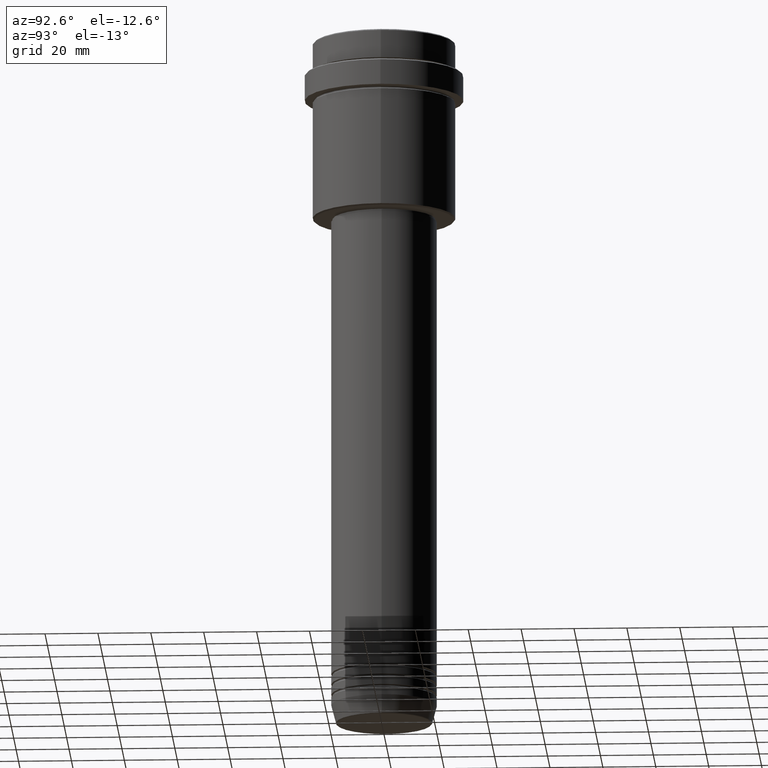
[diagram: clean part render]
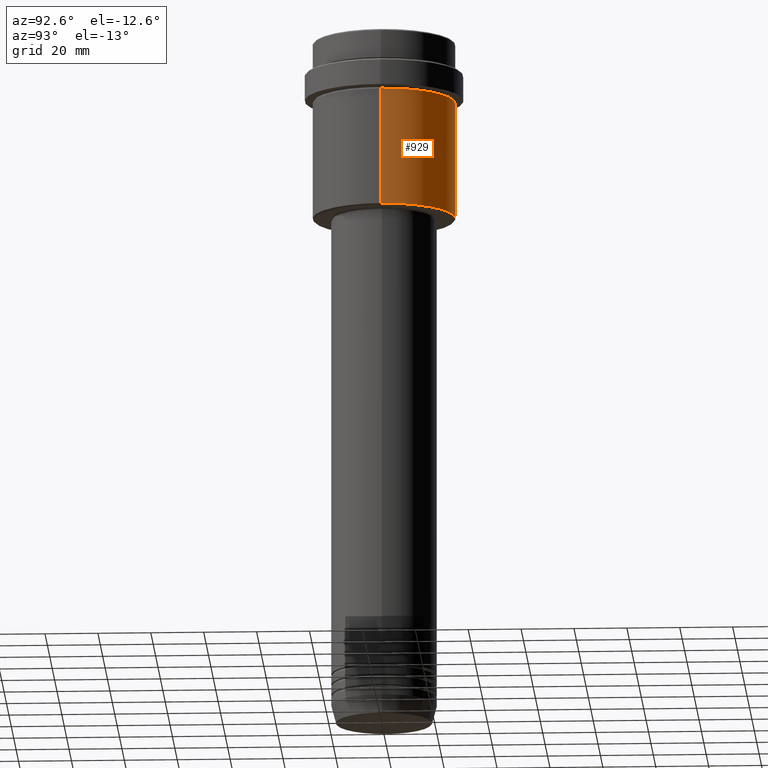
[diagram: same view with one face highlighted and labeled with its STEP entity id]
A machine part, auxiliary view. The second image highlights one B-rep face of the part: STEP entity #929.
In plain terms, the highlighted cylindrical surface (partial cylindrical patch) has radius 27 mm, axis along (-0, -0, 1).
Its self-contained STEP definition (entity closure, byte-faithful):
#8 = CARTESIAN_POINT ( 'NONE',  ( 26.99999999999999645, 0.000000000000000000, -67.49999999999998579 ) ) ;
#20 = VERTEX_POINT ( 'NONE', #1068 ) ;
#61 = ORIENTED_EDGE ( 'NONE', *, *, #1167, .T. ) ;
#87 = EDGE_CURVE ( 'NONE', #1330, #20, #1317, .T. ) ;
#94 = AXIS2_PLACEMENT_3D ( 'NONE', #918, #1139, #354 ) ;
#119 = VECTOR ( 'NONE', #731, 1000.000000000000000 ) ;
#169 = DIRECTION ( 'NONE',  ( -0.000000000000000000, -0.000000000000000000, 1.000000000000000000 ) ) ;
#266 = DIRECTION ( 'NONE',  ( 1.000000000000000000, 0.000000000000000000, 0.000000000000000000 ) ) ;
#280 = LINE ( 'NONE', #941, #119 ) ;
#284 = CYLINDRICAL_SURFACE ( 'NONE', #744, 26.99999999999999645 ) ;
#285 = VERTEX_POINT ( 'NONE', #8 ) ;
#300 = ORIENTED_EDGE ( 'NONE', *, *, #747, .T. ) ;
#354 = DIRECTION ( 'NONE',  ( -1.000000000000000000, 0.000000000000000000, 0.000000000000000000 ) ) ;
#384 = CIRCLE ( 'NONE', #94, 26.99999999999999645 ) ;
#404 = LINE ( 'NONE', #1273, #903 ) ;
#549 = EDGE_CURVE ( 'NONE', #285, #1330, #280, .T. ) ;
#622 = DIRECTION ( 'NONE',  ( 1.000000000000000000, 0.000000000000000000, 0.000000000000000000 ) ) ;
#674 = VERTEX_POINT ( 'NONE', #1094 ) ;
#687 = CARTESIAN_POINT ( 'NONE',  ( 26.99999999999999645, 0.000000000000000000, -23.00000000000000000 ) ) ;
#731 = DIRECTION ( 'NONE',  ( -0.000000000000000000, -0.000000000000000000, 1.000000000000000000 ) ) ;
#744 = AXIS2_PLACEMENT_3D ( 'NONE', #1169, #1389, #622 ) ;
#747 = EDGE_CURVE ( 'NONE', #285, #674, #384, .T. ) ;
#752 = CARTESIAN_POINT ( 'NONE',  ( 0.000000000000000000, 0.000000000000000000, -23.00000000000000000 ) ) ;
#799 = AXIS2_PLACEMENT_3D ( 'NONE', #752, #169, #266 ) ;
#867 = FACE_OUTER_BOUND ( 'NONE', #1345, .T. ) ;
#903 = VECTOR ( 'NONE', #1089, 1000.000000000000000 ) ;
#918 = CARTESIAN_POINT ( 'NONE',  ( 0.000000000000000000, 0.000000000000000000, -67.49999999999998579 ) ) ;
#929 = ADVANCED_FACE ( 'NONE', ( #867 ), #284, .T. ) ;
#941 = CARTESIAN_POINT ( 'NONE',  ( 26.99999999999999645, 0.000000000000000000, 0.000000000000000000 ) ) ;
#1068 = CARTESIAN_POINT ( 'NONE',  ( -26.99999999999999645, 3.306546357697853339E-15, -23.00000000000000000 ) ) ;
#1089 = DIRECTION ( 'NONE',  ( -0.000000000000000000, -0.000000000000000000, 1.000000000000000000 ) ) ;
#1093 = ORIENTED_EDGE ( 'NONE', *, *, #549, .F. ) ;
#1094 = CARTESIAN_POINT ( 'NONE',  ( -26.99999999999999645, 3.306546357697853339E-15, -67.49999999999998579 ) ) ;
#1139 = DIRECTION ( 'NONE',  ( -0.000000000000000000, -0.000000000000000000, 1.000000000000000000 ) ) ;
#1167 = EDGE_CURVE ( 'NONE', #674, #20, #404, .T. ) ;
#1169 = CARTESIAN_POINT ( 'NONE',  ( 0.000000000000000000, 0.000000000000000000, 0.000000000000000000 ) ) ;
#1273 = CARTESIAN_POINT ( 'NONE',  ( -26.99999999999999645, 3.306546357697853339E-15, 0.000000000000000000 ) ) ;
#1303 = ORIENTED_EDGE ( 'NONE', *, *, #87, .F. ) ;
#1317 = CIRCLE ( 'NONE', #799, 26.99999999999999645 ) ;
#1330 = VERTEX_POINT ( 'NONE', #687 ) ;
#1345 = EDGE_LOOP ( 'NONE', ( #300, #61, #1303, #1093 ) ) ;
#1389 = DIRECTION ( 'NONE',  ( -0.000000000000000000, -0.000000000000000000, 1.000000000000000000 ) ) ;